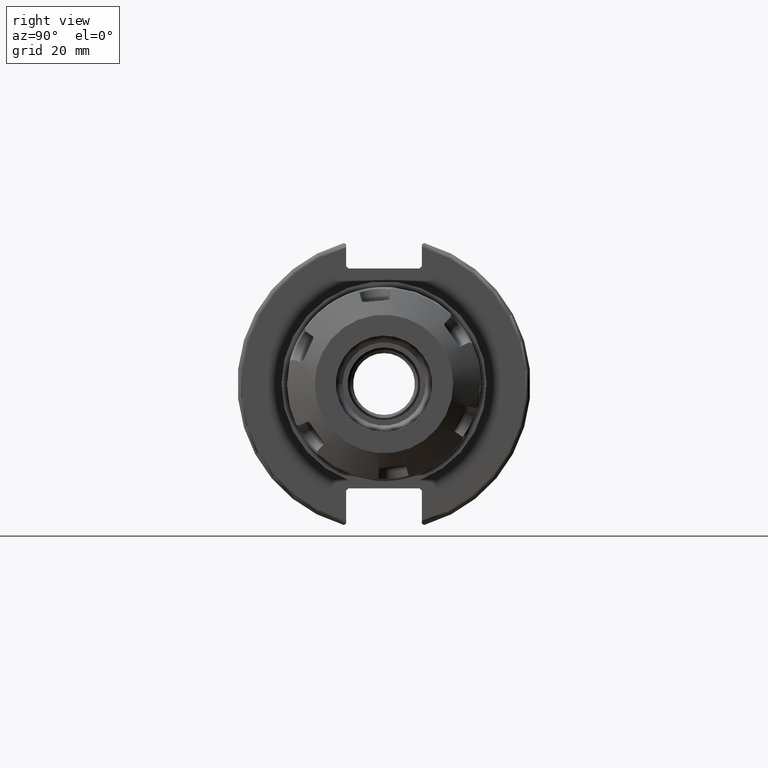
[diagram: clean part render]
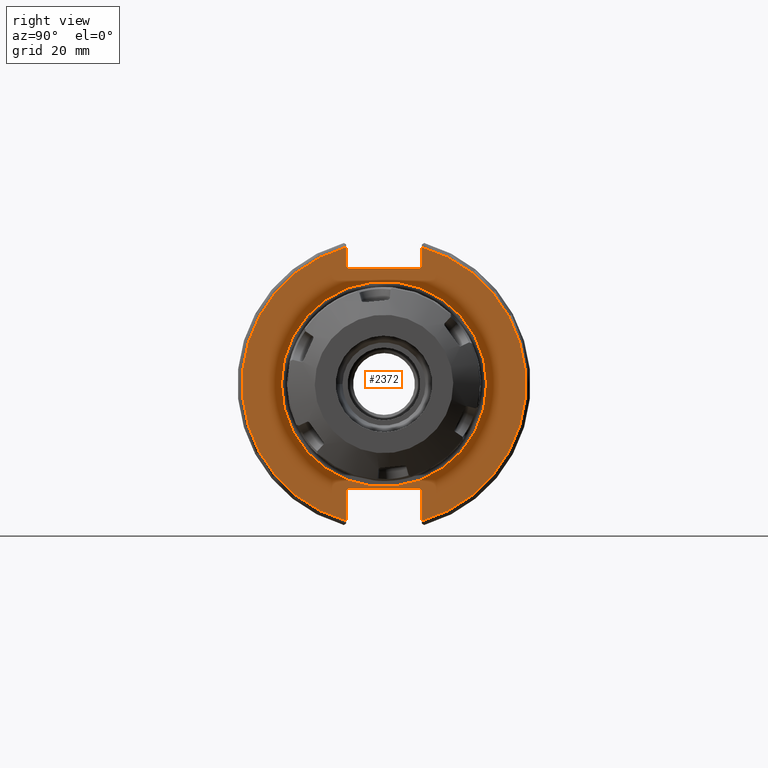
[diagram: same view with one face highlighted and labeled with its STEP entity id]
A machine part, right view. The second image highlights one B-rep face of the part: STEP entity #2372.
In plain terms, the highlighted planar face has unit normal (1, 0, 0).
Its self-contained STEP definition (entity closure, byte-faithful):
#224=FACE_BOUND('',#493,.T.);
#240=PLANE('',#2609);
#347=FACE_OUTER_BOUND('',#492,.T.);
#492=EDGE_LOOP('',(#1714,#1715,#1716,#1717,#1718,#1719,#1720,#1721,#1722,
#1723,#1724,#1725));
#493=EDGE_LOOP('',(#1726));
#647=LINE('',#3589,#810);
#653=LINE('',#3615,#816);
#654=LINE('',#3617,#817);
#655=LINE('',#3619,#818);
#656=LINE('',#3621,#819);
#657=LINE('',#3623,#820);
#658=LINE('',#3627,#821);
#659=LINE('',#3629,#822);
#660=LINE('',#3631,#823);
#661=LINE('',#3632,#824);
#810=VECTOR('',#2911,10.);
#816=VECTOR('',#2919,10.);
#817=VECTOR('',#2920,10.);
#818=VECTOR('',#2921,10.);
#819=VECTOR('',#2922,10.);
#820=VECTOR('',#2923,10.);
#821=VECTOR('',#2926,10.);
#822=VECTOR('',#2927,10.);
#823=VECTOR('',#2928,10.);
#824=VECTOR('',#2929,10.);
#959=CIRCLE('',#2582,22.225);
#972=CIRCLE('',#2605,30.75);
#974=CIRCLE('',#2610,30.75);
#1062=VERTEX_POINT('',#3483);
#1085=VERTEX_POINT('',#3544);
#1086=VERTEX_POINT('',#3551);
#1092=VERTEX_POINT('',#3588);
#1099=VERTEX_POINT('',#3614);
#1100=VERTEX_POINT('',#3616);
#1101=VERTEX_POINT('',#3618);
#1102=VERTEX_POINT('',#3620);
#1103=VERTEX_POINT('',#3622);
#1104=VERTEX_POINT('',#3624);
#1105=VERTEX_POINT('',#3626);
#1106=VERTEX_POINT('',#3628);
#1107=VERTEX_POINT('',#3630);
#1291=EDGE_CURVE('',#1062,#1062,#959,.T.);
#1319=EDGE_CURVE('',#1085,#1086,#972,.T.);
#1327=EDGE_CURVE('',#1092,#1086,#647,.T.);
#1336=EDGE_CURVE('',#1085,#1099,#653,.T.);
#1337=EDGE_CURVE('',#1100,#1099,#654,.T.);
#1338=EDGE_CURVE('',#1100,#1101,#655,.T.);
#1339=EDGE_CURVE('',#1102,#1101,#656,.T.);
#1340=EDGE_CURVE('',#1102,#1103,#657,.T.);
#1341=EDGE_CURVE('',#1104,#1103,#974,.T.);
#1342=EDGE_CURVE('',#1104,#1105,#658,.T.);
#1343=EDGE_CURVE('',#1106,#1105,#659,.T.);
#1344=EDGE_CURVE('',#1106,#1107,#660,.T.);
#1345=EDGE_CURVE('',#1092,#1107,#661,.T.);
#1714=ORIENTED_EDGE('',*,*,#1319,.F.);
#1715=ORIENTED_EDGE('',*,*,#1336,.T.);
#1716=ORIENTED_EDGE('',*,*,#1337,.F.);
#1717=ORIENTED_EDGE('',*,*,#1338,.T.);
#1718=ORIENTED_EDGE('',*,*,#1339,.F.);
#1719=ORIENTED_EDGE('',*,*,#1340,.T.);
#1720=ORIENTED_EDGE('',*,*,#1341,.F.);
#1721=ORIENTED_EDGE('',*,*,#1342,.T.);
#1722=ORIENTED_EDGE('',*,*,#1343,.F.);
#1723=ORIENTED_EDGE('',*,*,#1344,.T.);
#1724=ORIENTED_EDGE('',*,*,#1345,.F.);
#1725=ORIENTED_EDGE('',*,*,#1327,.T.);
#1726=ORIENTED_EDGE('',*,*,#1291,.T.);
#2372=ADVANCED_FACE('',(#347,#224),#240,.T.);
#2582=AXIS2_PLACEMENT_3D('',#3485,#2841,#2842);
#2605=AXIS2_PLACEMENT_3D('',#3552,#2901,#2902);
#2609=AXIS2_PLACEMENT_3D('',#3613,#2917,#2918);
#2610=AXIS2_PLACEMENT_3D('',#3625,#2924,#2925);
#2841=DIRECTION('center_axis',(-1.,0.,0.));
#2842=DIRECTION('ref_axis',(0.,1.,0.));
#2901=DIRECTION('center_axis',(-1.,0.,0.));
#2902=DIRECTION('ref_axis',(0.,1.,-6.12323399573677E-17));
#2911=DIRECTION('',(0.,0.,-1.));
#2917=DIRECTION('center_axis',(1.,0.,0.));
#2918=DIRECTION('ref_axis',(0.,0.,-1.));
#2919=DIRECTION('',(0.,0.,-1.));
#2920=DIRECTION('',(0.,0.707106781186549,0.707106781186546));
#2921=DIRECTION('',(0.,-1.,0.));
#2922=DIRECTION('',(0.,0.70710678118655,-0.707106781186545));
#2923=DIRECTION('',(0.,0.,1.));
#2924=DIRECTION('center_axis',(-1.,0.,0.));
#2925=DIRECTION('ref_axis',(0.,-1.,1.60812264967664E-16));
#2926=DIRECTION('',(0.,0.,1.));
#2927=DIRECTION('',(0.,-0.707106781186549,-0.707106781186546));
#2928=DIRECTION('',(0.,1.,0.));
#2929=DIRECTION('',(0.,-0.707106781186549,0.707106781186546));
#3483=CARTESIAN_POINT('',(19.05,-22.225,-2.72177751110499E-15));
#3485=CARTESIAN_POINT('Origin',(19.05,0.,0.));
#3544=CARTESIAN_POINT('',(19.05,8.19,29.6392712461019));
#3551=CARTESIAN_POINT('',(19.05,8.19,-29.6392712461019));
#3552=CARTESIAN_POINT('Origin',(19.05,0.,0.));
#3588=CARTESIAN_POINT('',(19.05,8.19,-23.1));
#3589=CARTESIAN_POINT('',(19.05,8.19,-11.3));
#3613=CARTESIAN_POINT('Origin',(19.05,0.,0.));
#3614=CARTESIAN_POINT('',(19.05,8.19,25.5));
#3615=CARTESIAN_POINT('',(19.05,8.19,12.5));
#3616=CARTESIAN_POINT('',(19.05,7.69,25.));
#3617=CARTESIAN_POINT('',(19.05,-0.35750000000001,16.9525));
#3618=CARTESIAN_POINT('',(19.05,-7.69,25.));
#3619=CARTESIAN_POINT('',(19.05,0.,25.));
#3620=CARTESIAN_POINT('',(19.05,-8.19,25.5));
#3621=CARTESIAN_POINT('',(19.05,0.357500000000014,16.9525));
#3622=CARTESIAN_POINT('',(19.05,-8.19,29.6392712461019));
#3623=CARTESIAN_POINT('',(19.05,-8.19,12.5));
#3624=CARTESIAN_POINT('',(19.05,-8.19,-29.6392712461019));
#3625=CARTESIAN_POINT('Origin',(19.05,0.,0.));
#3626=CARTESIAN_POINT('',(19.05,-8.19,-23.1));
#3627=CARTESIAN_POINT('',(19.05,-8.19,-11.3));
#3628=CARTESIAN_POINT('',(19.05,-7.69,-22.6));
#3629=CARTESIAN_POINT('',(19.05,-0.242499999999991,-15.1525));
#3630=CARTESIAN_POINT('',(19.05,7.69,-22.6));
#3631=CARTESIAN_POINT('',(19.05,-2.77555756156289E-16,-22.6));
#3632=CARTESIAN_POINT('',(19.05,0.242499999999989,-15.1525));